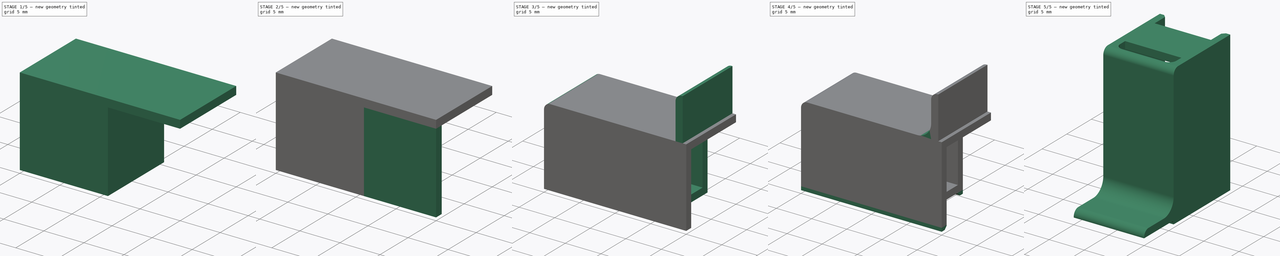
[diagram: build sequence overview — one tinted view per stage of 5, left to right]
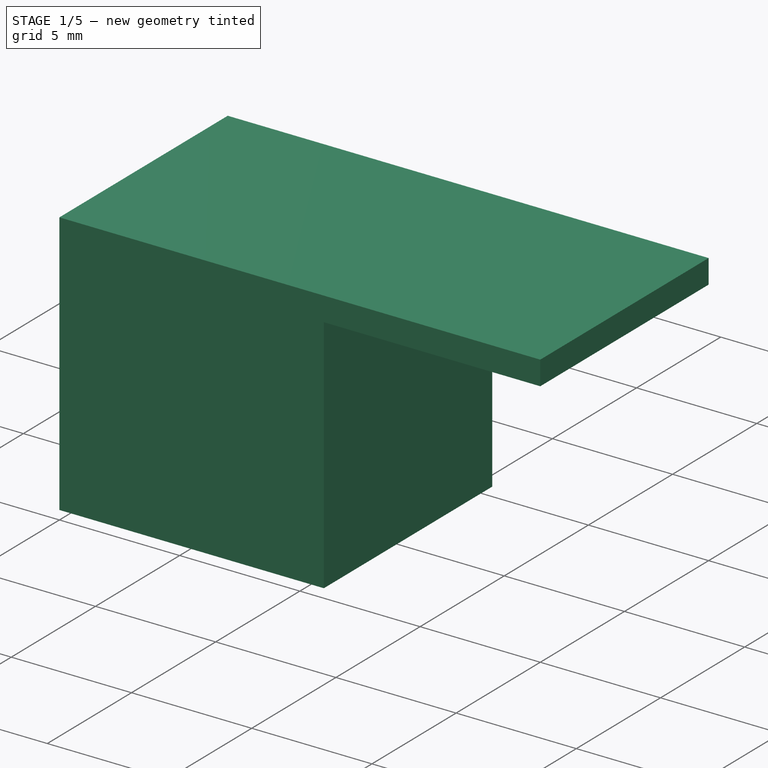
[diagram: stage 1 of 5 — iso view after this stage's code; geometry added in this stage tinted green]
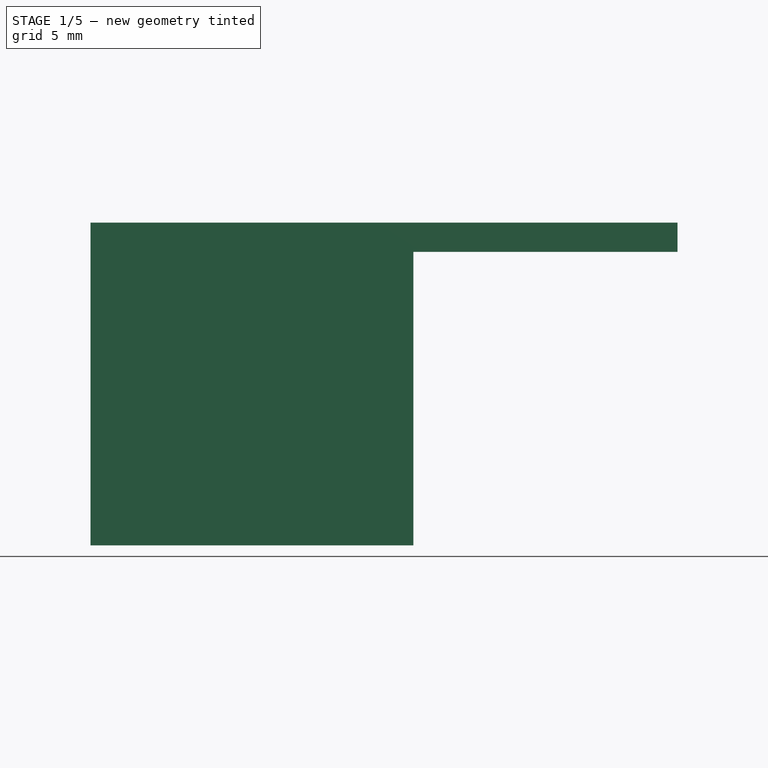
[diagram: stage 1 of 5 — front view after this stage's code; geometry added in this stage tinted green]
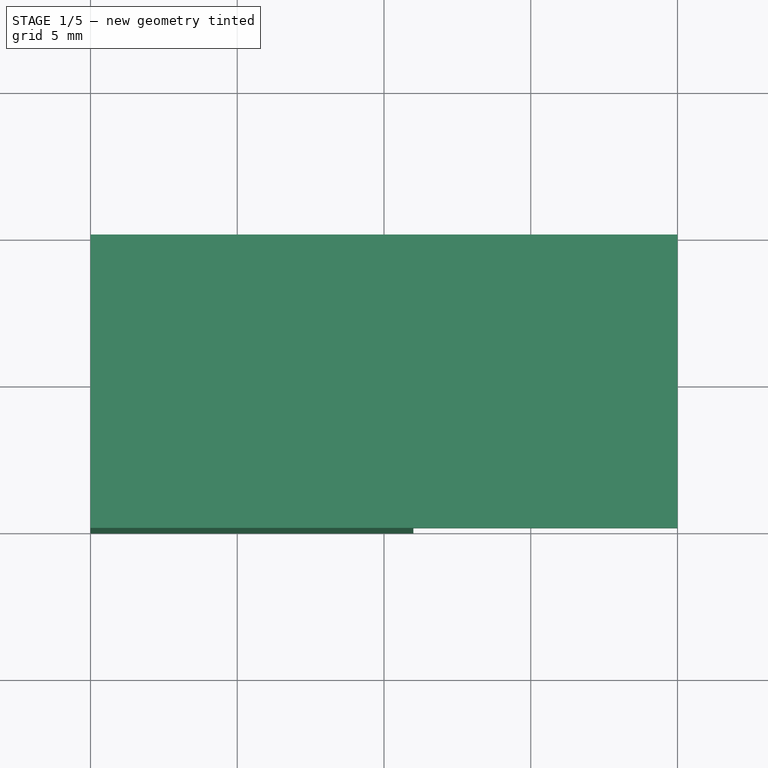
[diagram: stage 1 of 5 — top view after this stage's code; geometry added in this stage tinted green]
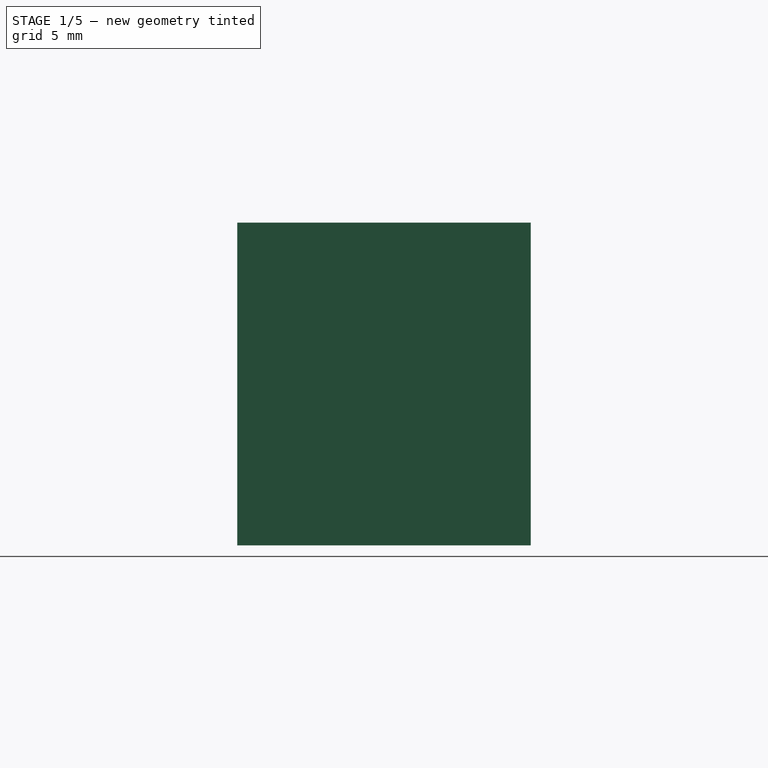
[diagram: stage 1 of 5 — right view after this stage's code; geometry added in this stage tinted green]
FCSTD DOCUMENT  (FreeCAD 0.20R29410 (Git))
Label: flooding-sensor
License: All rights reserved
LicenseURL: http://en.wikipedia.org/wiki/All_rights_reserved
objects: Sketcher::SketchObject×13, PartDesign::Pad×11, PartDesign::Fillet×6, PartDesign::Pocket×2, PartDesign::Chamfer×2, App::Link×1, Part::Mirroring×1, PartDesign::Body×1
note: 57 computed .brp shape members not serialized (recipe doc carries the construction recipe); baked Part::Feature solids carry a one-line shape summary decoded from their .brp

FEATURE [Sketcher::SketchObject] Sketch016
  FullyConstrained = true
  MapMode = 5
  Support = -> [XY_Plane003]
  sketch-geometry (4):
    g0: LineSegment StartX=-10 StartY=5 StartZ=0 EndX=10 EndY=5 EndZ=0
    g1: LineSegment StartX=10 StartY=5 StartZ=0 EndX=10 EndY=-5 EndZ=0
    g2: LineSegment StartX=10 StartY=-5 StartZ=0 EndX=-10 EndY=-5 EndZ=0
    g3: LineSegment StartX=-10 StartY=-5 StartZ=0 EndX=-10 EndY=5 EndZ=0
  constraints (11):
    c: Coincident(g0,g1)
    c: Coincident(g1,g2)
    c: Coincident(g2,g3)
    c: Coincident(g3,g0)
    c: Horizontal(g0)
    c: Horizontal(g2)
    c: Vertical(g1)
    c: Vertical(g3)
    c: DistanceX(g0,g0) = 20
    c: DistanceY(g1,g1) = 10
    c: Symmetric(g1,g0,g-1)
FEATURE [PartDesign::Pad] Pad011
  Direction = (0,0,1)
  Length = 1
  Length2 = 10
  Profile = -> Sketch016
  ReferenceAxis = -> Sketch016 [N_Axis]
  Type = 0
FEATURE [Sketcher::SketchObject] Sketch017
  ExternalGeometry = -> [Pad011]
  FullyConstrained = true
  MapMode = 5
  Placement = pos=(0,0,0) rot=(1,0,0;3.14159rad)
  Support = -> [Pad011]
  sketch-geometry (4):
    g0: LineSegment StartX=-1 StartY=5 StartZ=0 EndX=1 EndY=5 EndZ=0
    g1: LineSegment StartX=1 StartY=5 StartZ=0 EndX=1 EndY=-5 EndZ=0
    g2: LineSegment StartX=1 StartY=-5 StartZ=0 EndX=-1 EndY=-5 EndZ=0
    g3: LineSegment StartX=-1 StartY=-5 StartZ=0 EndX=-1 EndY=5 EndZ=0
  constraints (11):
    c: Coincident(g0,g1)
    c: Coincident(g1,g2)
    c: Coincident(g2,g3)
    c: Coincident(g3,g0)
    c: Horizontal(g2)
    c: Vertical(g1)
    c: Vertical(g3)
    c: PointOnObject(g0,g-3)
    c: PointOnObject(g1,g-4)
    c: DistanceX(g0,g0) = 2
    c: Symmetric(g0,g0,g-2)
FEATURE [PartDesign::Pad] Pad012
  BaseFeature = -> Pad011
  Direction = (0,0,-1)
  Length = 10
  Length2 = 10
  Profile = -> Sketch017
  ReferenceAxis = -> Sketch017 [N_Axis]
  Type = 0
FEATURE [Sketcher::SketchObject] Sketch018
  ExternalGeometry = -> [Pad012]
  FullyConstrained = true
  MapMode = 5
  Placement = pos=(0,0,0) rot=(1,0,0;3.14159rad)
  Support = -> [Pad012]
  sketch-geometry (8):
    g0: LineSegment StartX=-10 StartY=5 StartZ=0 EndX=-1 EndY=5 EndZ=0
    g1: LineSegment StartX=-1 StartY=5 StartZ=0 EndX=-1 EndY=4 EndZ=0
    g2: LineSegment StartX=-1 StartY=4 StartZ=0 EndX=-10 EndY=4 EndZ=0
    g3: LineSegment StartX=-10 StartY=4 StartZ=0 EndX=-10 EndY=5 EndZ=0
    g4: LineSegment StartX=-10 StartY=-5 StartZ=0 EndX=-1 EndY=-5 EndZ=0
    g5: LineSegment StartX=-1 StartY=-5 StartZ=0 EndX=-1 EndY=-4 EndZ=0
    g6: LineSegment StartX=-1 StartY=-4 StartZ=0 EndX=-10 EndY=-4 EndZ=0
    g7: LineSegment StartX=-10 StartY=-4 StartZ=0 EndX=-10 EndY=-5 EndZ=0
  constraints (22):
    c: Coincident(g0,g1)
    c: Coincident(g1,g2)
    c: Coincident(g2,g3)
    c: Coincident(g3,g0)
    c: Horizontal(g0)
    c: Horizontal(g2)
    c: Vertical(g1)
    c: Vertical(g3)
    c: Coincident(g0,g-5)
    c: PointOnObject(g1,g-3)
    c: Coincident(g4,g5)
    c: Coincident(g5,g6)
    c: Coincident(g6,g7)
    c: Coincident(g7,g4)
    c: Horizontal(g4)
    c: Horizontal(g6)
    c: Vertical(g5)
    c: Vertical(g7)
    c: Coincident(g4,g-4)
    c: PointOnObject(g5,g-3)
    c: DistanceY(g3,g3) = 1
    c: DistanceY(g7,g7) = 1
FEATURE [PartDesign::Pad] Pad013
  BaseFeature = -> Pad012
  Direction = (0,0,-1)
  Length = 10
  Length2 = 10
  Profile = -> Sketch018
  ReferenceAxis = -> Sketch018 [N_Axis]
  Type = 0
FEATURE [Sketcher::SketchObject] Sketch019
  ExternalGeometry = -> [Pad013]
  FullyConstrained = true
  MapMode = 5
  Placement = pos=(0,0,0) rot=(1,0,0;3.14159rad)
  Support = -> [Pad013]
  sketch-geometry (4):
    g0: LineSegment StartX=-1 StartY=0.5 StartZ=0 EndX=-6 EndY=0.5 EndZ=0
    g1: LineSegment StartX=-6 StartY=0.5 StartZ=0 EndX=-6 EndY=-0.5 EndZ=0
    g2: LineSegment StartX=-6 StartY=-0.5 StartZ=0 EndX=-1 EndY=-0.5 EndZ=0
    g3: LineSegment StartX=-1 StartY=-0.5 StartZ=0 EndX=-1 EndY=0.5 EndZ=0
  constraints (11):
    c: Coincident(g0,g1)
    c: Coincident(g1,g2)
    c: Coincident(g2,g3)
    c: Coincident(g3,g0)
    c: Horizontal(g0)
    c: Horizontal(g2)
    c: Vertical(g3)
    c: PointOnObject(g0,g-3)
    c: DistanceY(g1,g1) = 1
    c: Symmetric(g1,g0,g-1)
    c: DistanceX(g0,g0) = 5
FEATURE [PartDesign::Pad] Pad014
  BaseFeature = -> Pad013
  Direction = (0,0,-1)
  Length = 5
  Length2 = 10
  Profile = -> Sketch019
  ReferenceAxis = -> Sketch019 [N_Axis]
  Type = 0
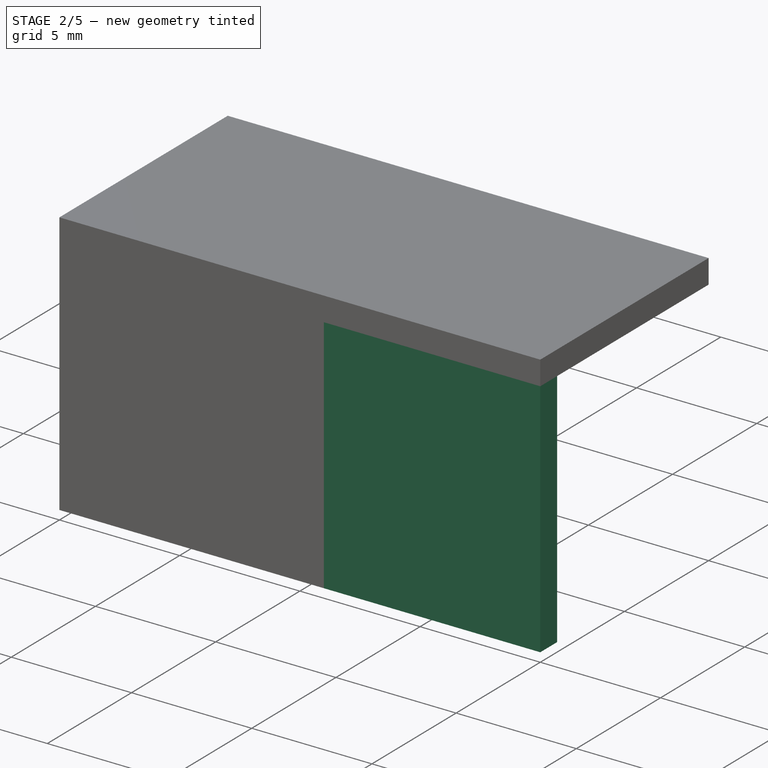
[diagram: stage 2 of 5 — iso view after this stage's code; geometry added in this stage tinted green]
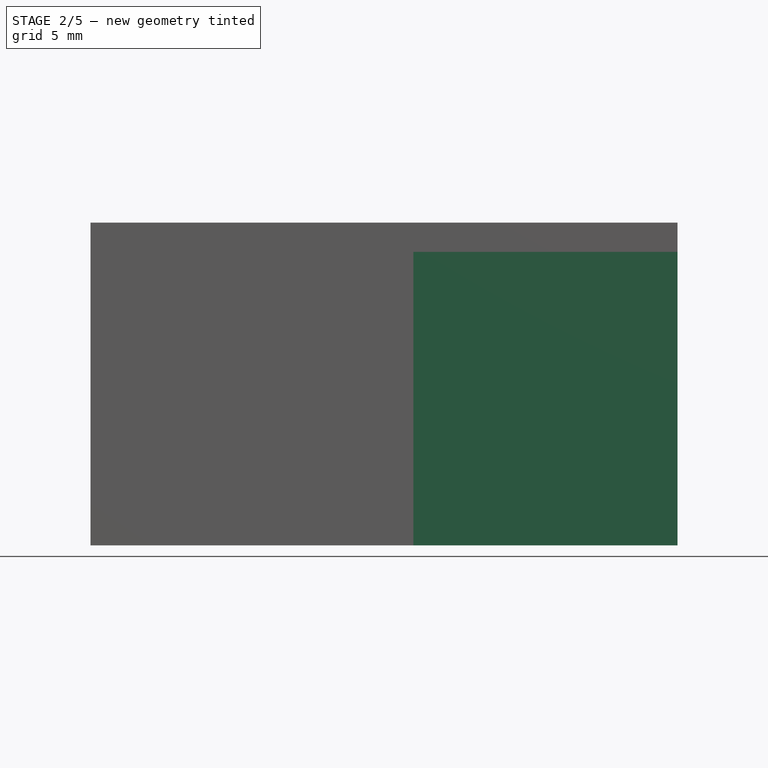
[diagram: stage 2 of 5 — front view after this stage's code; geometry added in this stage tinted green]
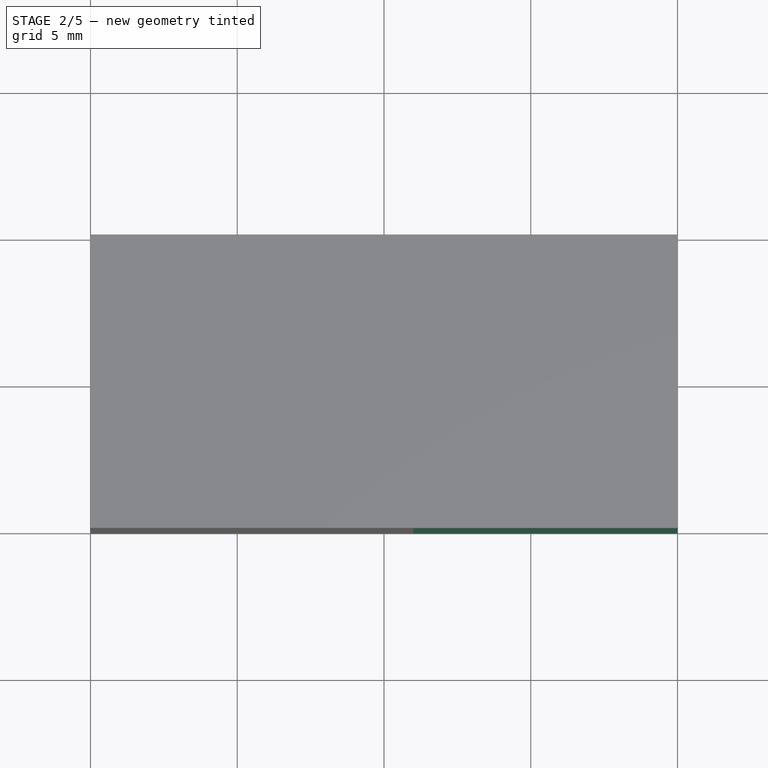
[diagram: stage 2 of 5 — top view after this stage's code; geometry added in this stage tinted green]
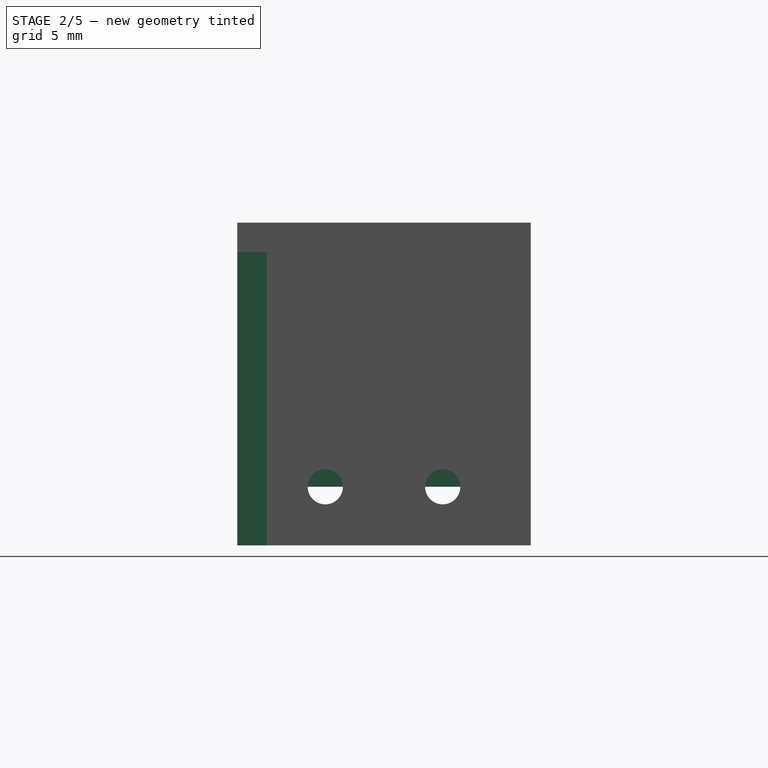
[diagram: stage 2 of 5 — right view after this stage's code; geometry added in this stage tinted green]
FEATURE [Sketcher::SketchObject] Sketch020
  ExternalGeometry = -> [Pad014]
  FullyConstrained = true
  MapMode = 5
  Placement = pos=(0,0,-5) rot=(1,0,0;3.14159rad)
  Support = -> [Pad014]
  sketch-geometry (4):
    g0: LineSegment StartX=-1 StartY=4 StartZ=0 EndX=-6 EndY=4 EndZ=0
    g1: LineSegment StartX=-6 StartY=4 StartZ=0 EndX=-6 EndY=-4 EndZ=0
    g2: LineSegment StartX=-6 StartY=-4 StartZ=0 EndX=-1 EndY=-4 EndZ=0
    g3: LineSegment StartX=-1 StartY=-4 StartZ=0 EndX=-1 EndY=4 EndZ=0
  constraints (11):
    c: Coincident(g0,g1)
    c: Coincident(g1,g2)
    c: Coincident(g2,g3)
    c: Coincident(g3,g0)
    c: Horizontal(g0)
    c: Horizontal(g2)
    c: Vertical(g1)
    c: Vertical(g3)
    c: Coincident(g0,g-3)
    c: PointOnObject(g1,g-4)
    c: PointOnObject(g-5,g1)
FEATURE [PartDesign::Pad] Pad015
  BaseFeature = -> Pad014
  Direction = (0,0,-1)
  Length = 1
  Length2 = 10
  Profile = -> Sketch020
  ReferenceAxis = -> Sketch020 [N_Axis]
  Type = 0
FEATURE [Sketcher::SketchObject] Sketch021
  ExternalGeometry = -> [Pad015]
  FullyConstrained = true
  MapMode = 5
  Placement = pos=(-1,0,0) rot=(0.57735,-0.57735,-0.57735;2.0944rad)
  Support = -> [Pad015]
  sketch-geometry (2):
    g0: Circle CenterX=-2 CenterY=-8 CenterZ=0 NormalX=0 NormalY=0 NormalZ=1 AngleXU=0 Radius=0.6
    g1: Circle CenterX=2 CenterY=-8 CenterZ=0 NormalX=0 NormalY=0 NormalZ=1 AngleXU=0 Radius=0.6
  constraints (5):
    c: Equal(g1,g0)
    c: Diameter(g1) = 1.2
    c: DistanceY(g1,g-3) = 2
    c: DistanceX(g1,g-3) = 2
    c: Symmetric(g1,g0,g-2)
FEATURE [PartDesign::Pocket] Pocket003
  BaseFeature = -> Pad015
  Direction = (1,0,0)
  Length = 5
  Length2 = 5
  Profile = -> Sketch021
  ReferenceAxis = -> Sketch021 [N_Axis]
  Type = 0
FEATURE [Sketcher::SketchObject] Sketch022
  ExternalGeometry = -> [Pocket003]
  FullyConstrained = true
  MapMode = 5
  Placement = pos=(-10,0,0) rot=(0.57735,-0.57735,-0.57735;2.0944rad)
  Support = -> [Pocket003]
  sketch-geometry (4):
    g0: LineSegment StartX=-4 StartY=-2 StartZ=0 EndX=4 EndY=-2 EndZ=0
    g1: LineSegment StartX=4 StartY=-2 StartZ=0 EndX=4 EndY=-8 EndZ=0
    g2: LineSegment StartX=4 StartY=-8 StartZ=0 EndX=-4 EndY=-8 EndZ=0
    g3: LineSegment StartX=-4 StartY=-8 StartZ=0 EndX=-4 EndY=-2 EndZ=0
  constraints (12):
    c: Coincident(g0,g1)
    c: Coincident(g1,g2)
    c: Coincident(g2,g3)
    c: Coincident(g3,g0)
    c: Horizontal(g0)
    c: Horizontal(g2)
    c: Vertical(g1)
    c: Vertical(g3)
    c: PointOnObject(g0,g-3)
    c: PointOnObject(g1,g-4)
    c: DistanceY(g-4,g1) = 2
    c: DistanceY(g0,g-4) = 2
FEATURE [PartDesign::Pad] Pad016
  BaseFeature = -> Pocket003
  Direction = (-1,0,0)
  Length = 1
  Length2 = 10
  Profile = -> Sketch022
  ReferenceAxis = -> Sketch022 [N_Axis]
  Reversed = true
  Type = 0
FEATURE [Sketcher::SketchObject] Sketch023
  ExternalGeometry = -> [Pad016]
  FullyConstrained = true
  MapMode = 5
  Placement = pos=(0,0,-6) rot=(1,0,0;3.14159rad)
  Support = -> [Pad016]
  sketch-geometry (8):
    g0: LineSegment StartX=-3.75 StartY=3.25 StartZ=0 EndX=-1.75 EndY=3.25 EndZ=0
    g1: LineSegment StartX=-1.75 StartY=3.25 StartZ=0 EndX=-1.75 EndY=1.25 EndZ=0
    g2: LineSegment StartX=-1.75 StartY=1.25 StartZ=0 EndX=-3.75 EndY=1.25 EndZ=0
    g3: LineSegment StartX=-3.75 StartY=1.25 StartZ=0 EndX=-3.75 EndY=3.25 EndZ=0
    g4: LineSegment StartX=-3.75 StartY=-1.25 StartZ=0 EndX=-1.75 EndY=-1.25 EndZ=0
    g5: LineSegment StartX=-1.75 StartY=-1.25 StartZ=0 EndX=-1.75 EndY=-3.25 EndZ=0
    g6: LineSegment StartX=-1.75 StartY=-3.25 StartZ=0 EndX=-3.75 EndY=-3.25 EndZ=0
    g7: LineSegment StartX=-3.75 StartY=-3.25 StartZ=0 EndX=-3.75 EndY=-1.25 EndZ=0
  constraints (23):
    c: Coincident(g0,g1)
    c: Coincident(g1,g2)
    c: Coincident(g2,g3)
    c: Coincident(g3,g0)
    c: Horizontal(g0)
    c: Horizontal(g2)
    c: Vertical(g1)
    c: Vertical(g3)
    c: Coincident(g4,g5)
    c: Coincident(g5,g6)
    c: Coincident(g6,g7)
    c: Coincident(g7,g4)
    c: Horizontal(g4)
    c: Horizontal(g6)
    c: Vertical(g5)
    c: Vertical(g7)
    c: Equal(g0,g4)
    c: Equal(g3,g7)
    c: DistanceY(g1,g1) = 2
    c: Equal(g0,g1)
    c: DistanceY(g0,g-3) = 0.75
    c: DistanceX(g0,g-3) = 0.75
    c: Symmetric(g1,g4,g-1)
FEATURE [PartDesign::Pocket] Pocket004
  BaseFeature = -> Pad016
  Direction = (0,0,1)
  Length = 5
  Length2 = 5
  Profile = -> Sketch023
  ReferenceAxis = -> Sketch023 [N_Axis]
  Type = 0
FEATURE [Sketcher::SketchObject] Sketch024
  ExternalGeometry = -> [Pocket004]
  FullyConstrained = true
  MapMode = 5
  Placement = pos=(1,0,0) rot=(0.57735,0.57735,0.57735;2.0944rad)
  Support = -> [Pocket004]
  sketch-geometry (4):
    g0: LineSegment StartX=-5 StartY=0 StartZ=0 EndX=-4 EndY=0 EndZ=0
    g1: LineSegment StartX=-4 StartY=0 StartZ=0 EndX=-4 EndY=-10 EndZ=0
    g2: LineSegment StartX=-4 StartY=-10 StartZ=0 EndX=-5 EndY=-10 EndZ=0
    g3: LineSegment StartX=-5 StartY=-10 StartZ=0 EndX=-5 EndY=0 EndZ=0
  constraints (11):
    c: Coincident(g0,g1)
    c: Coincident(g1,g2)
    c: Coincident(g2,g3)
    c: Coincident(g3,g0)
    c: Horizontal(g0)
    c: Horizontal(g2)
    c: Vertical(g1)
    c: Vertical(g3)
    c: Coincident(g0,g-3)
    c: PointOnObject(g1,g-4)
    c: DistanceX(g2,g2) = 1
FEATURE [PartDesign::Pad] Pad017
  BaseFeature = -> Pocket004
  Direction = (1,0,0)
  Length = 9
  Length2 = 10
  Profile = -> Sketch024
  ReferenceAxis = -> Sketch024 [N_Axis]
  Type = 0
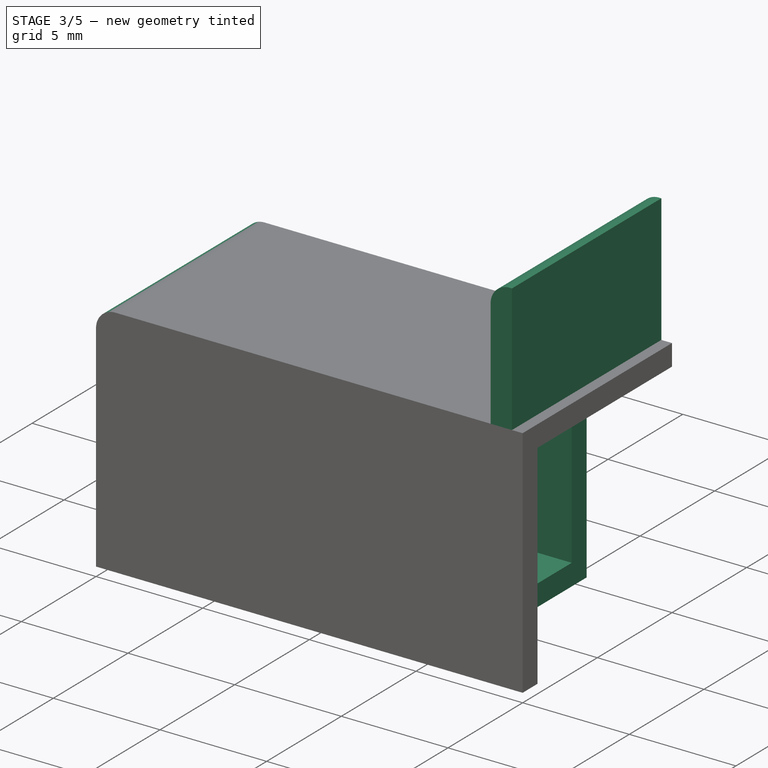
[diagram: stage 3 of 5 — iso view after this stage's code; geometry added in this stage tinted green]
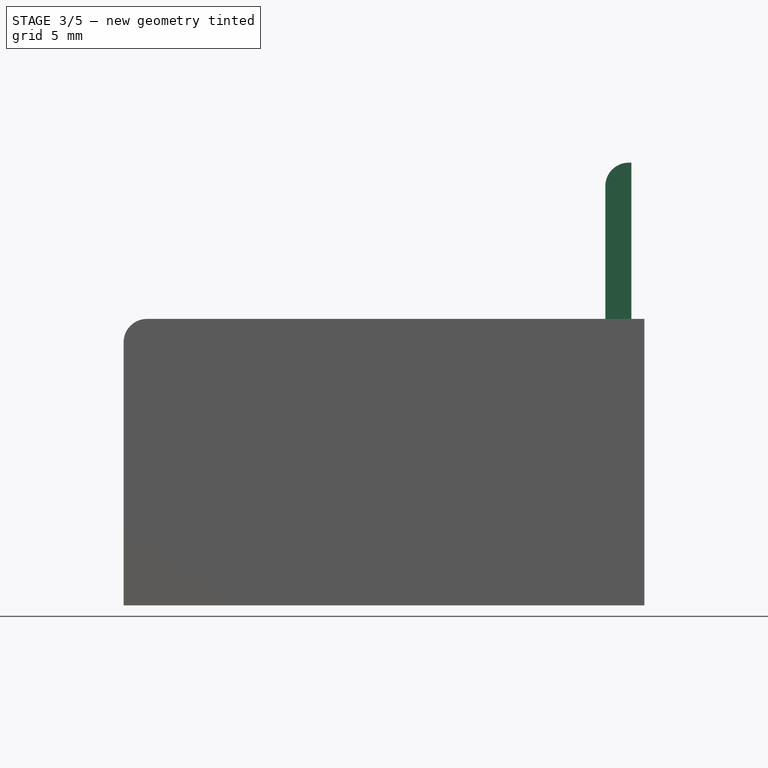
[diagram: stage 3 of 5 — front view after this stage's code; geometry added in this stage tinted green]
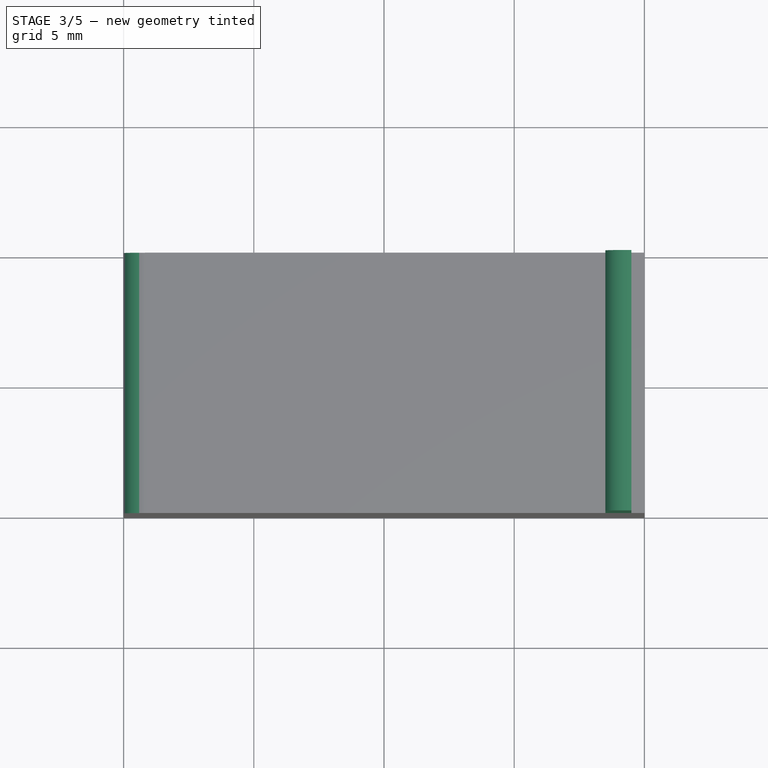
[diagram: stage 3 of 5 — top view after this stage's code; geometry added in this stage tinted green]
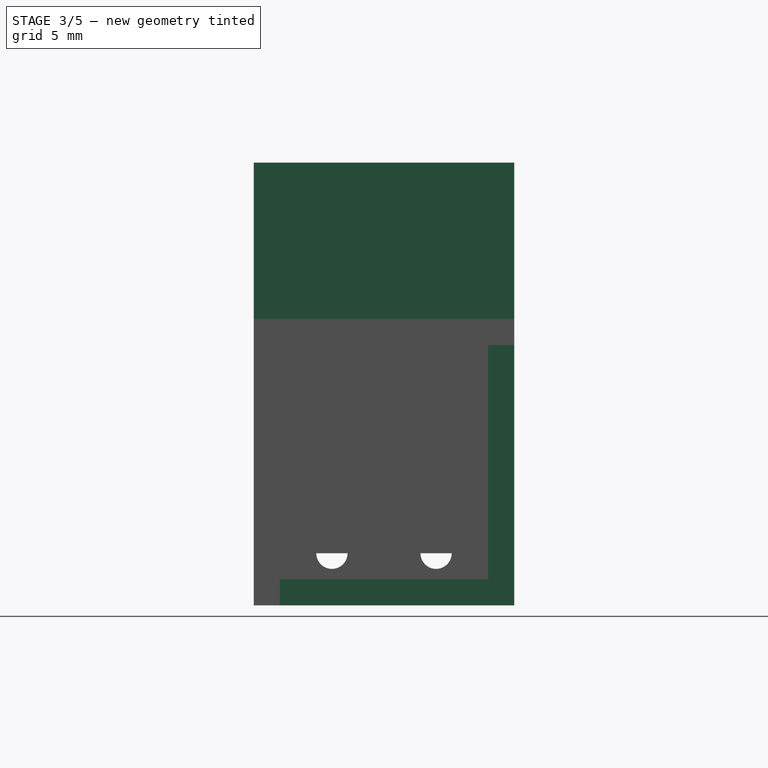
[diagram: stage 3 of 5 — right view after this stage's code; geometry added in this stage tinted green]
FEATURE [Sketcher::SketchObject] Sketch025
  ExternalGeometry = -> [Pad017]
  FullyConstrained = true
  MapMode = 5
  Placement = pos=(0,0,1) rot=(0,0,1;0rad)
  Support = -> [Pad017]
  sketch-geometry (4):
    g0: LineSegment StartX=8.5 StartY=5 StartZ=0 EndX=9.5 EndY=5 EndZ=0
    g1: LineSegment StartX=9.5 StartY=5 StartZ=0 EndX=9.5 EndY=-5 EndZ=0
    g2: LineSegment StartX=9.5 StartY=-5 StartZ=0 EndX=8.5 EndY=-5 EndZ=0
    g3: LineSegment StartX=8.5 StartY=-5 StartZ=0 EndX=8.5 EndY=5 EndZ=0
  constraints (12):
    c: Coincident(g0,g1)
    c: Coincident(g1,g2)
    c: Coincident(g2,g3)
    c: Coincident(g3,g0)
    c: Horizontal(g0)
    c: Horizontal(g2)
    c: Vertical(g1)
    c: Vertical(g3)
    c: PointOnObject(g0,g-3)
    c: PointOnObject(g1,g-4)
    c: DistanceX(g0,g0) = 1
    c: DistanceX(g0,g-3) = 0.5
FEATURE [PartDesign::Pad] Pad018
  BaseFeature = -> Pad017
  Direction = (0,0,1)
  Length = 6
  Length2 = 10
  Profile = -> Sketch025
  ReferenceAxis = -> Sketch025 [N_Axis]
  Type = 0
FEATURE [Sketcher::SketchObject] Sketch026
  ExternalGeometry = -> [Pad018]
  FullyConstrained = true
  MapMode = 5
  Placement = pos=(1,0,0) rot=(0.57735,0.57735,0.57735;2.0944rad)
  Support = -> [Pad018]
  sketch-geometry (4):
    g0: LineSegment StartX=5 StartY=-10 StartZ=0 EndX=4 EndY=-10 EndZ=0
    g1: LineSegment StartX=4 StartY=-10 StartZ=0 EndX=4 EndY=0 EndZ=0
    g2: LineSegment StartX=4 StartY=0 StartZ=0 EndX=5 EndY=0 EndZ=0
    g3: LineSegment StartX=5 StartY=0 StartZ=0 EndX=5 EndY=-10 EndZ=0
  constraints (11):
    c: Coincident(g0,g1)
    c: Coincident(g1,g2)
    c: Coincident(g2,g3)
    c: Coincident(g3,g0)
    c: Horizontal(g0)
    c: Horizontal(g2)
    c: Vertical(g1)
    c: Vertical(g3)
    c: Coincident(g0,g-3)
    c: PointOnObject(g1,g-4)
    c: DistanceX(g0,g0) = 1
FEATURE [PartDesign::Pad] Pad019
  BaseFeature = -> Pad018
  Direction = (1,0,0)
  Length = 5
  Length2 = 10
  Profile = -> Sketch026
  ReferenceAxis = -> Sketch026 [N_Axis]
  Type = 0
FEATURE [Sketcher::SketchObject] Sketch027
  ExternalGeometry = -> [Pad019]
  FullyConstrained = true
  MapMode = 5
  Placement = pos=(0,0,-10) rot=(1,0,0;3.14159rad)
  Support = -> [Pad019]
  sketch-geometry (4):
    g0: LineSegment StartX=-1 StartY=5 StartZ=0 EndX=6 EndY=5 EndZ=0
    g1: LineSegment StartX=6 StartY=5 StartZ=0 EndX=6 EndY=-5 EndZ=0
    g2: LineSegment StartX=6 StartY=-5 StartZ=0 EndX=-1 EndY=-5 EndZ=0
    g3: LineSegment StartX=-1 StartY=-5 StartZ=0 EndX=-1 EndY=5 EndZ=0
  constraints (10):
    c: Coincident(g0,g1)
    c: Coincident(g1,g2)
    c: Coincident(g2,g3)
    c: Coincident(g3,g0)
    c: Horizontal(g0)
    c: Horizontal(g2)
    c: Vertical(g1)
    c: Vertical(g3)
    c: Coincident(g0,g-5)
    c: Coincident(g1,g-3)
FEATURE [PartDesign::Pad] Pad020
  BaseFeature = -> Pad019
  Direction = (0,0,-1)
  Length = 1
  Length2 = 10
  Profile = -> Sketch027
  ReferenceAxis = -> Sketch027 [N_Axis]
  Reversed = true
  Type = 0
FEATURE [PartDesign::Fillet] Fillet
  Base = -> Pad020 [Edge79,Edge14]
  BaseFeature = -> Pad020
  Radius = 0.9
  SupportTransform = false
  UseAllEdges = false
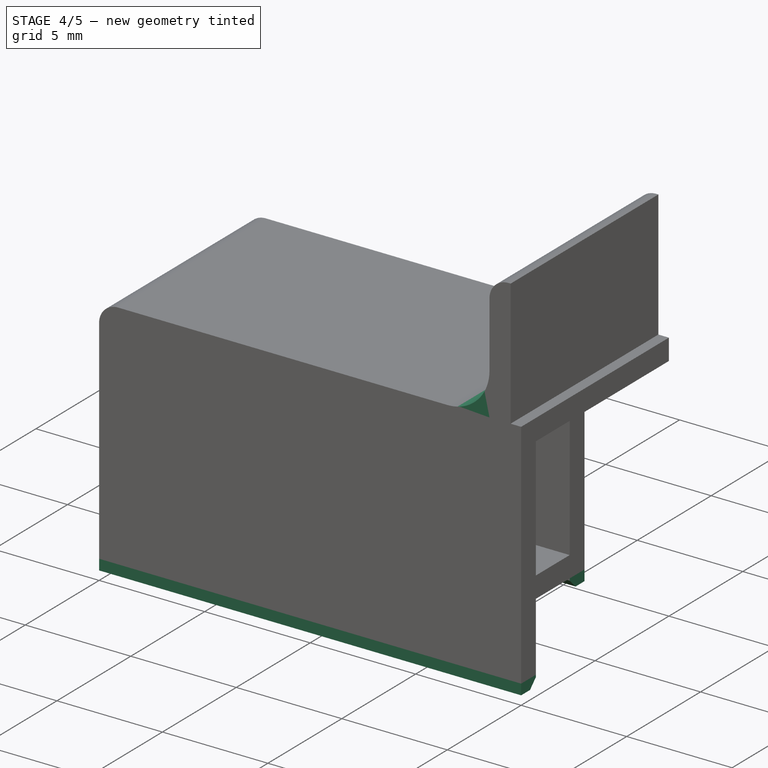
[diagram: stage 4 of 5 — iso view after this stage's code; geometry added in this stage tinted green]
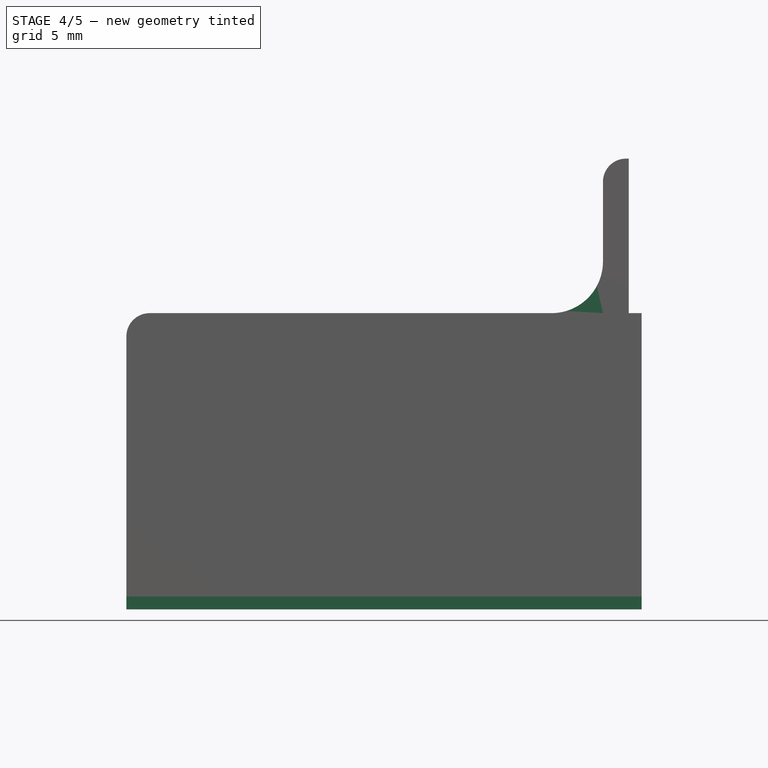
[diagram: stage 4 of 5 — front view after this stage's code; geometry added in this stage tinted green]
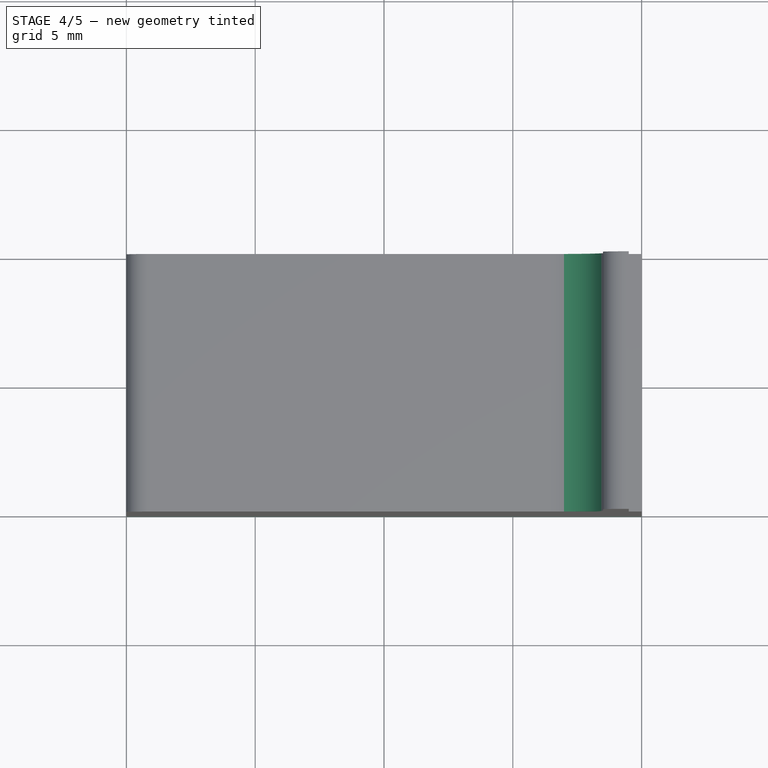
[diagram: stage 4 of 5 — top view after this stage's code; geometry added in this stage tinted green]
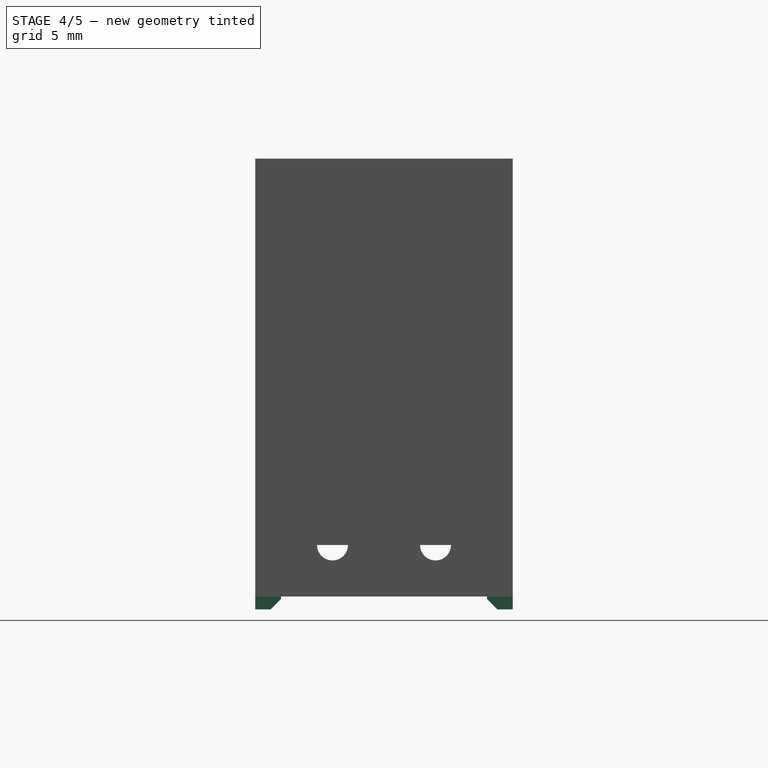
[diagram: stage 4 of 5 — right view after this stage's code; geometry added in this stage tinted green]
FEATURE [PartDesign::Fillet] Fillet001
  Base = -> Fillet [Edge22]
  BaseFeature = -> Fillet
  Radius = 2
  SupportTransform = false
  UseAllEdges = false
FEATURE [Sketcher::SketchObject] Sketch028
  ExternalGeometry = -> [Fillet001]
  FullyConstrained = true
  MapMode = 5
  Placement = pos=(0,0,-10) rot=(1,0,0;3.14159rad)
  Support = -> [Fillet001]
  sketch-geometry (8):
    g0: LineSegment StartX=10 StartY=4 StartZ=0 EndX=-10 EndY=4 EndZ=0
    g1: LineSegment StartX=-10 StartY=4 StartZ=0 EndX=-10 EndY=5 EndZ=0
    g2: LineSegment StartX=-10 StartY=5 StartZ=0 EndX=10 EndY=5 EndZ=0
    g3: LineSegment StartX=10 StartY=5 StartZ=0 EndX=10 EndY=4 EndZ=0
    g4: LineSegment StartX=6 StartY=-5 StartZ=0 EndX=-10 EndY=-5 EndZ=0
    g5: LineSegment StartX=-10 StartY=-5 StartZ=0 EndX=-10 EndY=-4 EndZ=0
    g6: LineSegment StartX=-10 StartY=-4 StartZ=0 EndX=6 EndY=-4 EndZ=0
    g7: LineSegment StartX=6 StartY=-4 StartZ=0 EndX=6 EndY=-5 EndZ=0
  constraints (20):
    c: Coincident(g0,g1)
    c: Coincident(g1,g2)
    c: Coincident(g2,g3)
    c: Coincident(g3,g0)
    c: Horizontal(g0)
    c: Horizontal(g2)
    c: Vertical(g1)
    c: Vertical(g3)
    c: Coincident(g0,g-4)
    c: Coincident(g1,g-3)
    c: Coincident(g4,g5)
    c: Coincident(g5,g6)
    c: Coincident(g6,g7)
    c: Coincident(g7,g4)
    c: Horizontal(g4)
    c: Horizontal(g6)
    c: Vertical(g5)
    c: Vertical(g7)
    c: Coincident(g4,g-5)
    c: Coincident(g5,g-6)
FEATURE [PartDesign::Pad] Pad021
  BaseFeature = -> Fillet001
  Direction = (0,0,-1)
  Length = 0.5
  Length2 = 10
  Profile = -> Sketch028
  ReferenceAxis = -> Sketch028 [N_Axis]
  Type = 0
FEATURE [PartDesign::Chamfer] Chamfer
  Angle = 45
  Base = -> Pad021 [Edge142]
  BaseFeature = -> Pad021
  ChamferType = 0
  FlipDirection = false
  Size = 0.4
  Size2 = 1
  SupportTransform = false
  UseAllEdges = false
FEATURE [PartDesign::Chamfer] Chamfer001
  Angle = 45
  Base = -> Chamfer [Edge99]
  BaseFeature = -> Chamfer
  ChamferType = 0
  FlipDirection = false
  Size = 0.4
  Size2 = 1
  SupportTransform = false
  UseAllEdges = false
FEATURE [PartDesign::Fillet] Fillet002
  Base = -> Chamfer001 [Edge71,Edge25,Edge66,Edge68,Edge67]
  BaseFeature = -> Chamfer001
  Radius = 1
  SupportTransform = false
  UseAllEdges = false
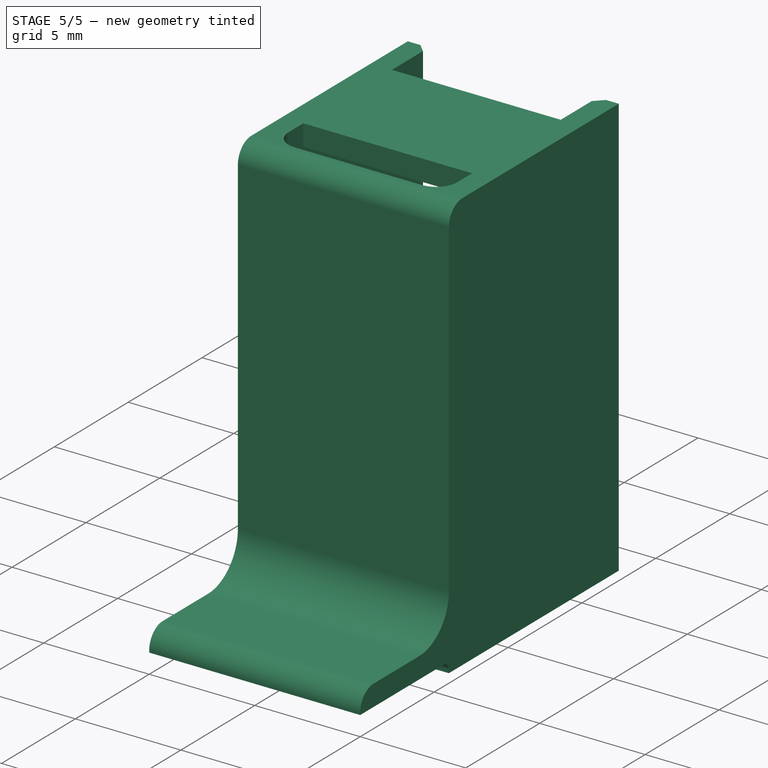
[diagram: stage 5 of 5 — iso view after this stage's code; geometry added in this stage tinted green]
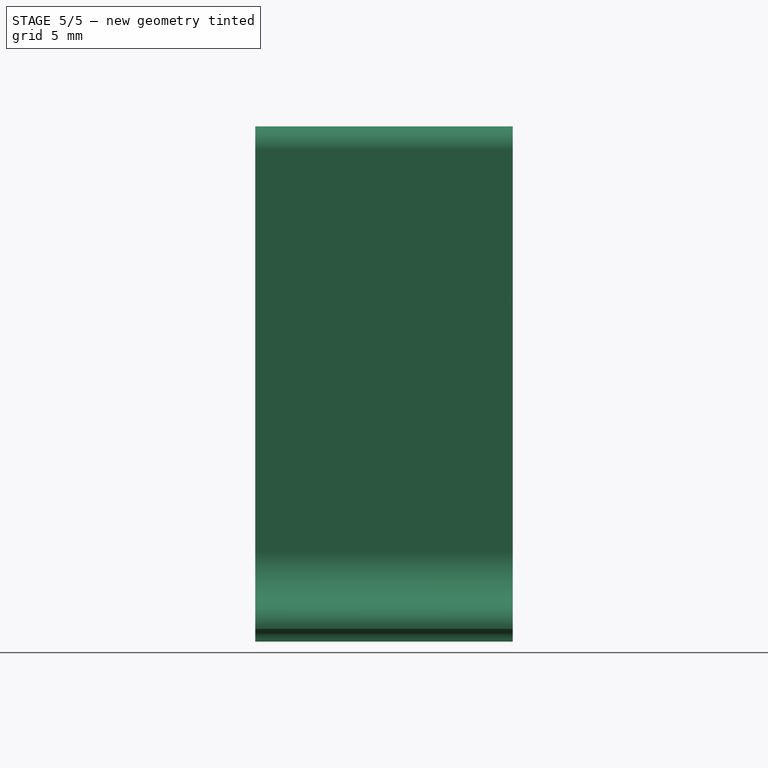
[diagram: stage 5 of 5 — front view after this stage's code; geometry added in this stage tinted green]
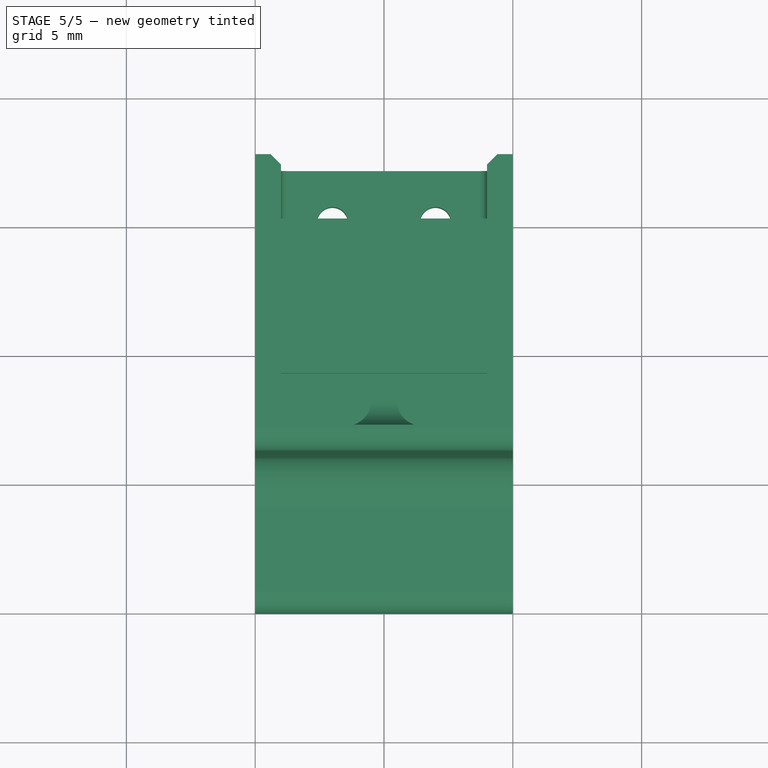
[diagram: stage 5 of 5 — top view after this stage's code; geometry added in this stage tinted green]
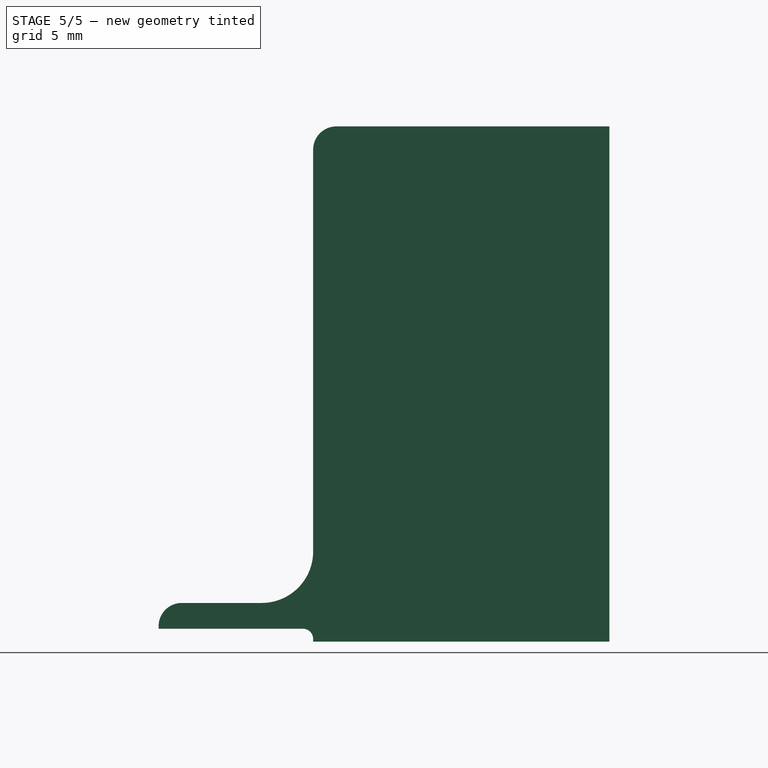
[diagram: stage 5 of 5 — right view after this stage's code; geometry added in this stage tinted green]
FEATURE [App::Link] Link  label="right-side-link"
  LinkedObject = -> Body003
FEATURE [Part::Mirroring] Part__Mirroring  label="left-side"
  Base = (0,0,0)
  Normal = (1,0,0)
  Placement = pos=(-5e-15,-8,14) rot=(0.57735,-0.57735,0.57735;2.0944rad)
  Source = -> Link
FEATURE [PartDesign::Fillet] Fillet003
  Base = -> Fillet002 [Edge44,Edge43,Edge10,Edge12,Edge60,Edge87,Edge100,Edge99,Edge6,Edge27,Edge32,Edge168]
  BaseFeature = -> Fillet002
  Radius = 0.3
  SupportTransform = false
  UseAllEdges = false
FEATURE [PartDesign::Fillet] Fillet004
  Base = -> Fillet003 [Edge210,Edge144,Edge145,Edge216,Edge211,Edge217]
  BaseFeature = -> Fillet003
  Radius = 1
  SupportTransform = false
  UseAllEdges = false
FEATURE [PartDesign::Fillet] Fillet005
  Base = -> Fillet004 [Edge107]
  BaseFeature = -> Fillet004
  Radius = 0.4
  SupportTransform = false
  UseAllEdges = false
FEATURE [PartDesign::Body] Body003  label="right-side"
  Group = -> [Sketch016,Pad011,Sketch017,Pad012,Sketch018,Pad013,Sketch019,Pad014,Sketch020,Pad015,Sketch021,Pocket003,Sketch022,Pad016,Sketch023,Pocket004,Sketch024,Pad017,Sketch025,Pad018,Sketch026,Pad019,Sketch027,Pad020,Fillet,Fillet001,Sketch028,Pad021,Chamfer,Chamfer001,Fillet002,Fillet003,Fillet004,Fillet005]
  Origin = -> Origin003
  Placement = pos=(-43,-8,14) rot=(0.57735,0.57735,-0.57735;2.0944rad)
  Tip = -> Fillet005
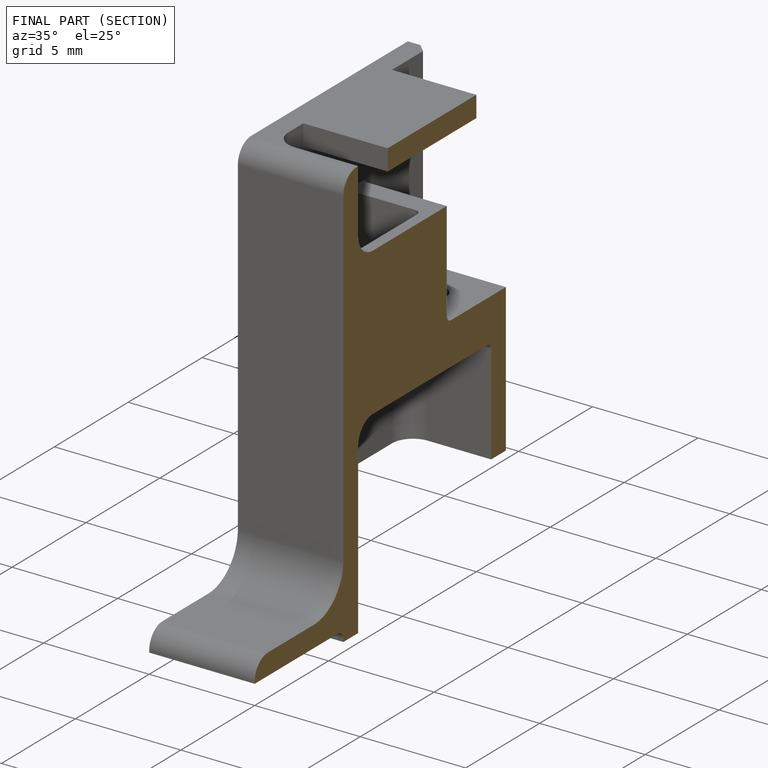
[diagram: finished part — half-section view (interior)]
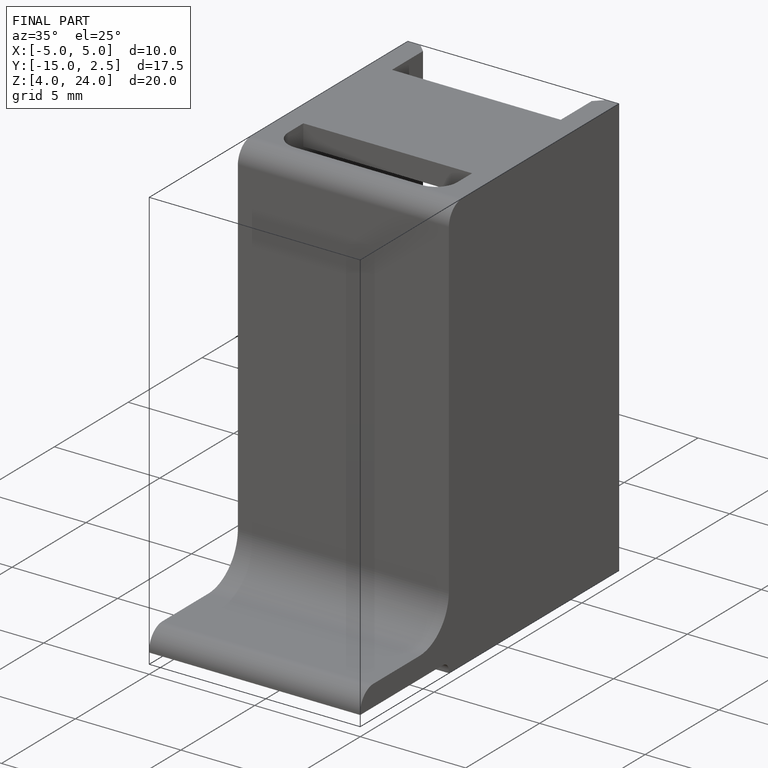
[diagram: finished part — iso view with bounding-box wireframe]
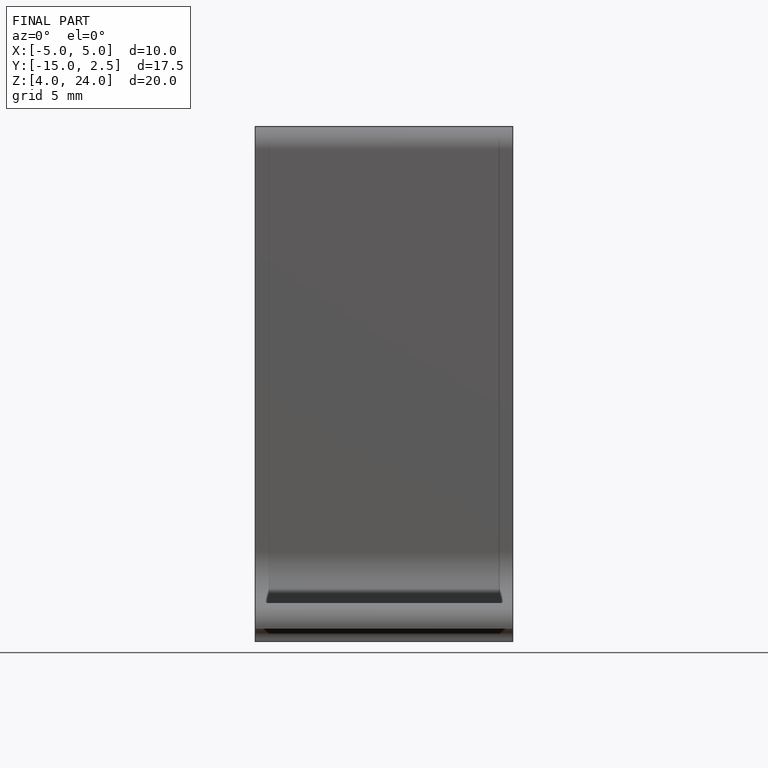
[diagram: finished part — front view with bounding-box wireframe]
